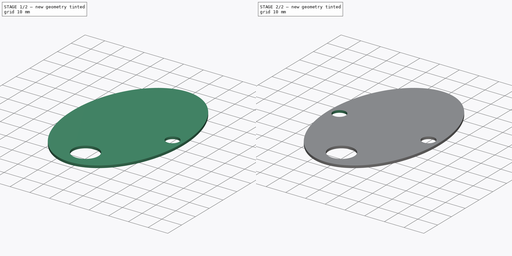
[diagram: build sequence overview — one tinted view per stage of 2, left to right]
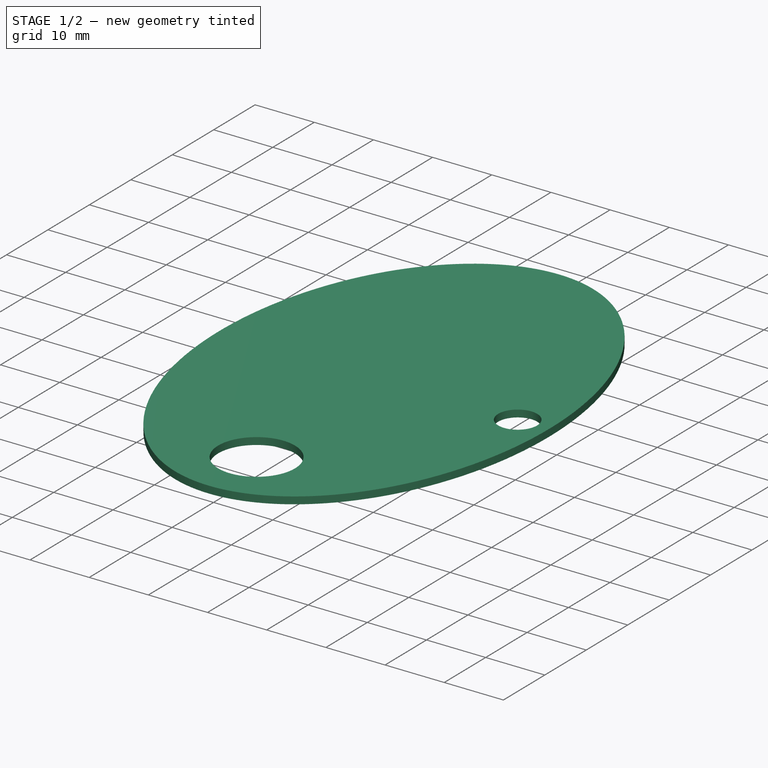
[diagram: stage 1 of 2 — iso view after this stage's code; geometry added in this stage tinted green]
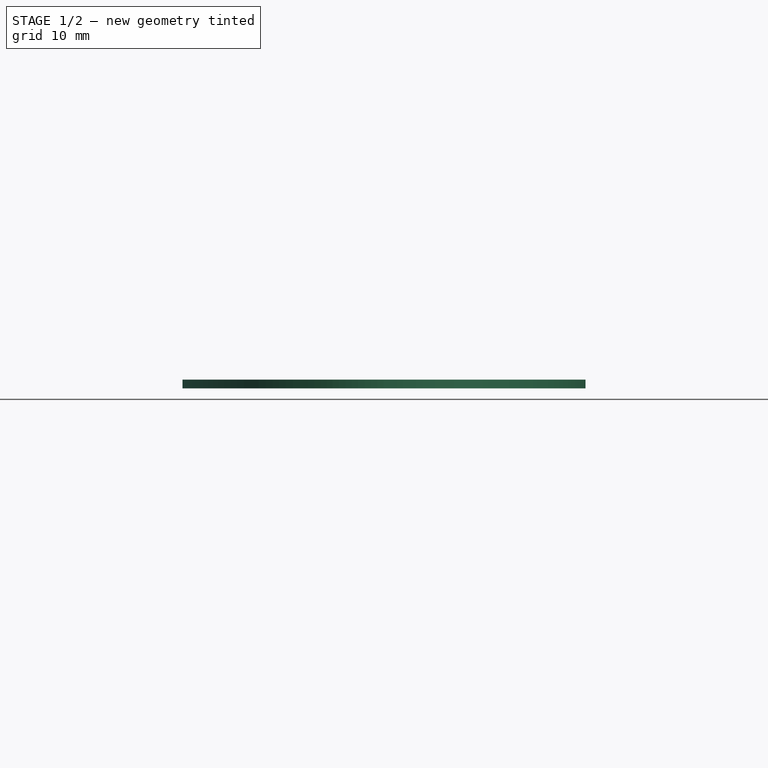
[diagram: stage 1 of 2 — front view after this stage's code; geometry added in this stage tinted green]
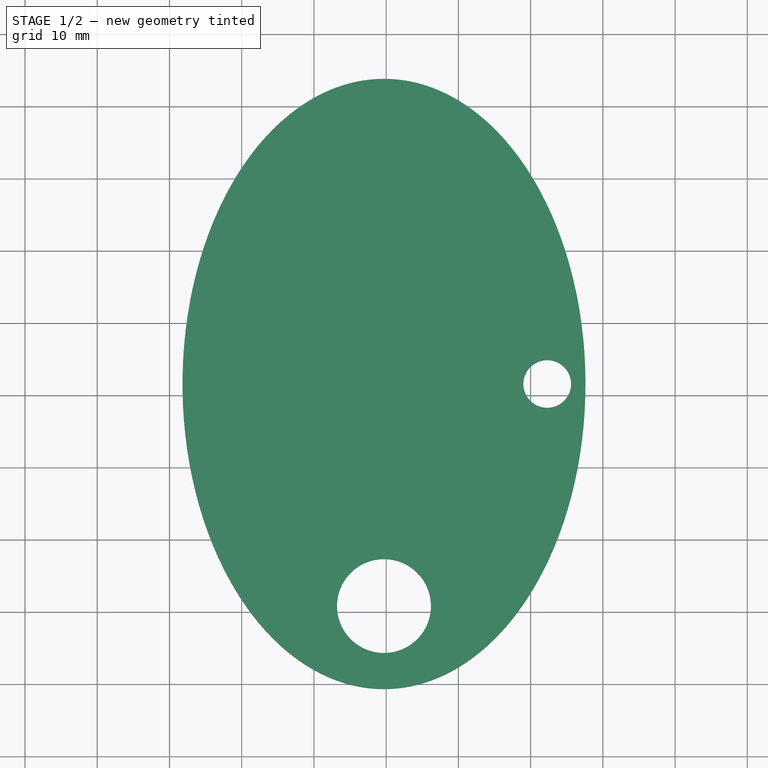
[diagram: stage 1 of 2 — top view after this stage's code; geometry added in this stage tinted green]
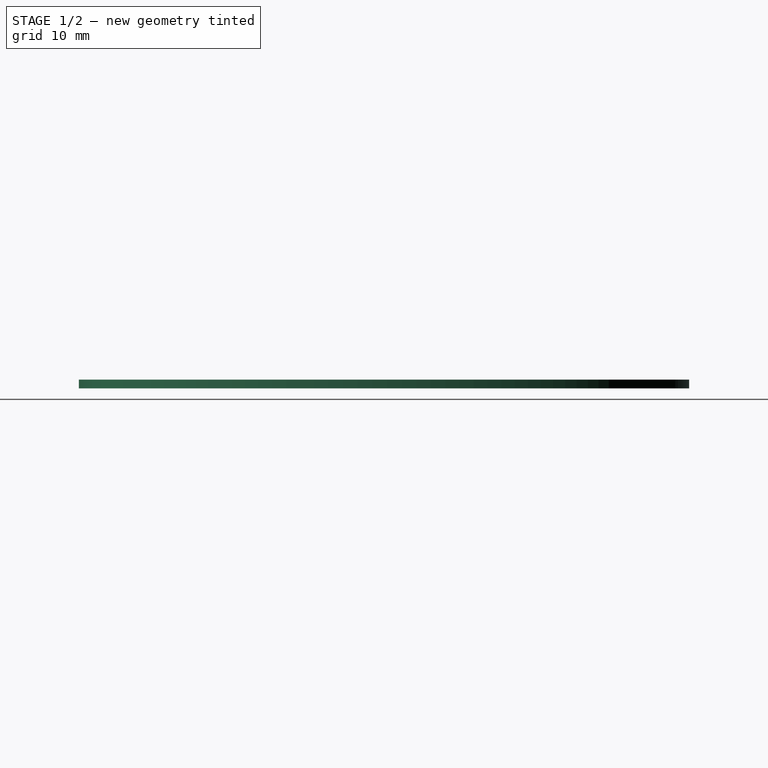
[diagram: stage 1 of 2 — right view after this stage's code; geometry added in this stage tinted green]
FCSTD DOCUMENT  (FreeCAD 0.17R13519 (Git))
Label: 射灯后壳
License: All rights reserved
LicenseURL: http://en.wikipedia.org/wiki/All_rights_reserved
objects: Part::Part2DObjectPython×1, PartDesign::Pad×1, Sketcher::SketchObject×1, PartDesign::Pocket×1, PartDesign::Mirrored×1, PartDesign::Body×1, Part::Feature×1
note: 9 computed .brp shape members not serialized (recipe doc carries the construction recipe); baked Part::Feature solids carry a one-line shape summary decoded from their .brp

FEATURE [Part::Part2DObjectPython] Ellipse  # Draft 2D object (typed FeaturePython)
  FirstAngle = 0
  LastAngle = 0
  MajorRadius = 42.25
  MakeFace = true
  MinorRadius = 27.9
  Placement = pos=(-0.302307,1.58421,0) rot=(0,0,1;1.5708rad)
FEATURE [PartDesign::Pad] Pad
  Length = 1.2
  Length2 = 100
  Placement = pos=(-0.302307,1.58421,0) rot=(0,0,1;1.5708rad)
  Profile = -> Ellipse
  Type = 0
FEATURE [Sketcher::SketchObject] Sketch
  ExternalGeometry = -> [Pad]
  MapMode = 5
  Placement = pos=(-0.302307,1.58421,0) rot=(0.707107,0.707107,0;3.14159rad)
  Support = -> [Pad]
  sketch-geometry (6):
    g0: GeomPoint X=0 Y=27.9 Z=0
    g1: GeomPoint X=-42.25 Y=0 Z=0
    g2: GeomPoint X=0 Y=-27.9 Z=0
    g3: GeomPoint X=42.25 Y=0 Z=0
    g4: Circle CenterX=-30.75 CenterY=0 CenterZ=0 NormalX=0 NormalY=0 NormalZ=1 AngleXU=0 Radius=6.5
    g5: Circle CenterX=0 CenterY=22.6 CenterZ=0 NormalX=0 NormalY=0 NormalZ=1 AngleXU=0 Radius=3.3
  constraints (14):
    c: PointOnObject(g0,g-3)
    c: PointOnObject(g0,g-2)
    c: PointOnObject(g1,g-3)
    c: PointOnObject(g1,g-1)
    c: PointOnObject(g2,g-3)
    c: PointOnObject(g2,g-2)
    c: PointOnObject(g3,g-3)
    c: PointOnObject(g3,g-1)
    c: Radius(g4) = 6.5
    c: PointOnObject(g4,g-1)
    c: DistanceX(g1,g4) = 11.5
    c: Radius(g5) = 3.3
    c: PointOnObject(g5,g-2)
    c: DistanceY(g5,g0) = 5.3
FEATURE [PartDesign::Pocket] Pocket
  BaseFeature = -> Pad
  Length = 1.2
  Length2 = 100
  Placement = pos=(-0.302307,1.58421,0) rot=(0,0,1;1.5708rad)
  Profile = -> Sketch
  Type = 0
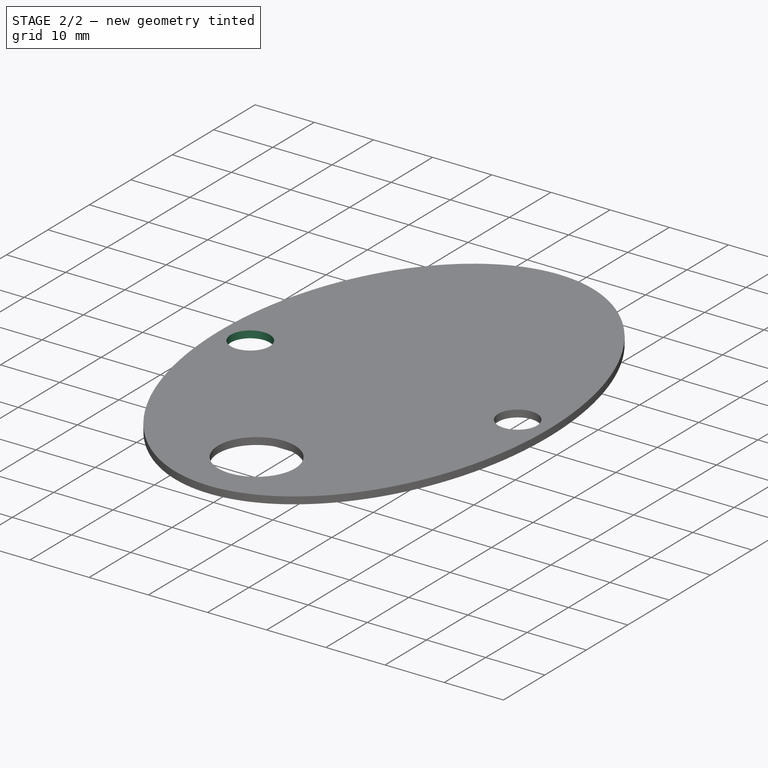
[diagram: stage 2 of 2 — iso view after this stage's code; geometry added in this stage tinted green]
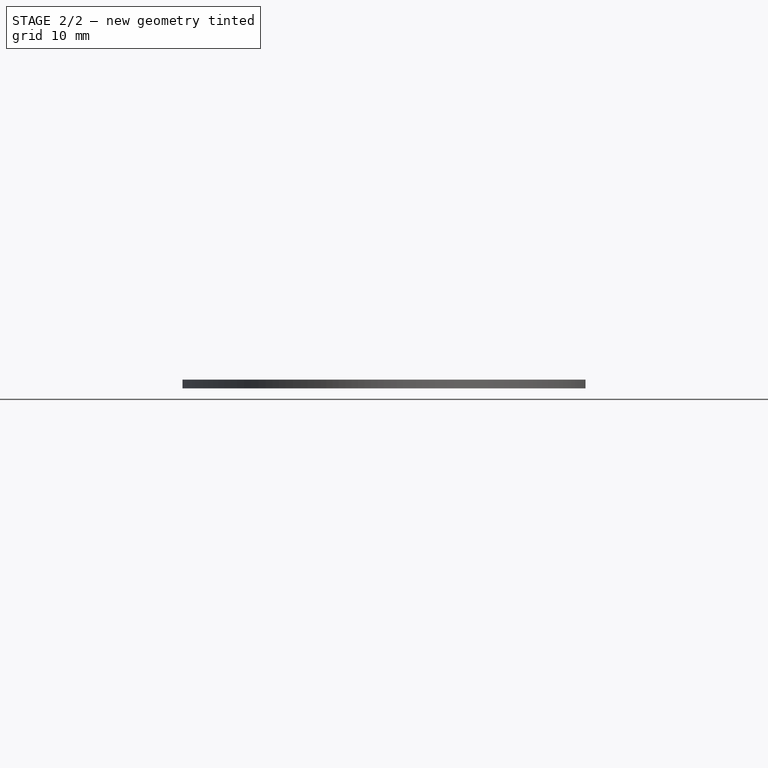
[diagram: stage 2 of 2 — front view after this stage's code; geometry added in this stage tinted green]
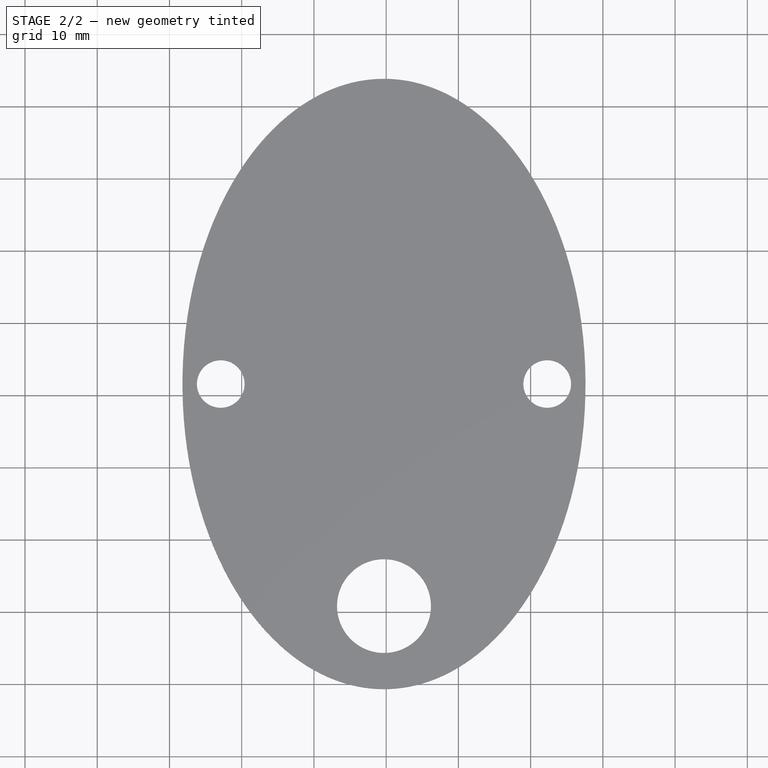
[diagram: stage 2 of 2 — top view after this stage's code; geometry added in this stage tinted green]
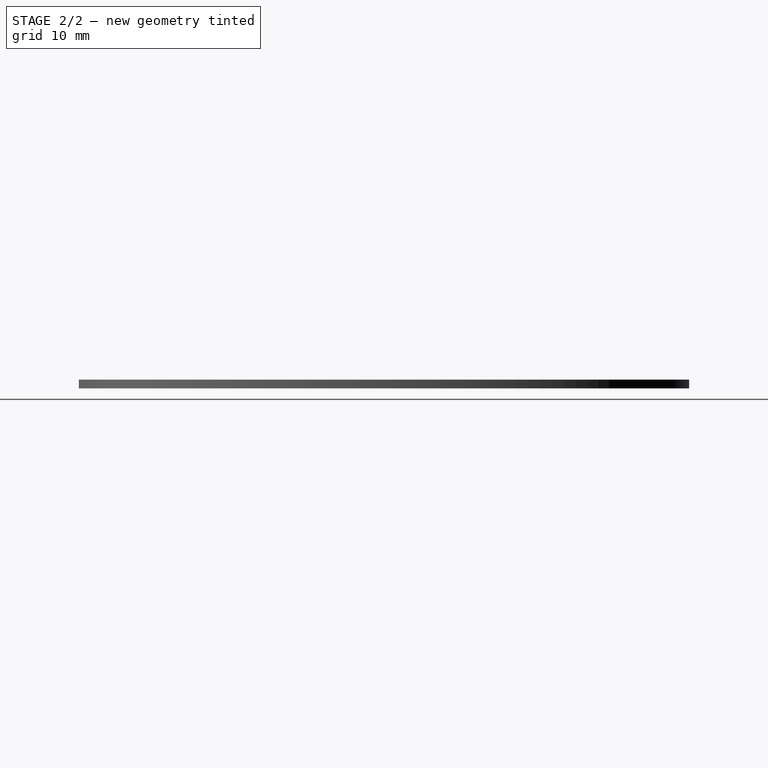
[diagram: stage 2 of 2 — right view after this stage's code; geometry added in this stage tinted green]
FEATURE [PartDesign::Mirrored] Mirrored
  BaseFeature = -> Pocket
  MirrorPlane = -> Sketch [H_Axis]
  Originals = -> [Pocket]
  Placement = pos=(-0.302307,1.58421,0) rot=(0,0,1;1.5708rad)
FEATURE [PartDesign::Body] Body
  Group = -> [Ellipse,Pad,Sketch,Pocket,Mirrored]
  Origin = -> Origin
  Tip = -> Mirrored
FEATURE [Part::Feature] Mirrored001
  shape: bbox 55.8 x 84.5 x 1.2 mm, 6 faces (baked)
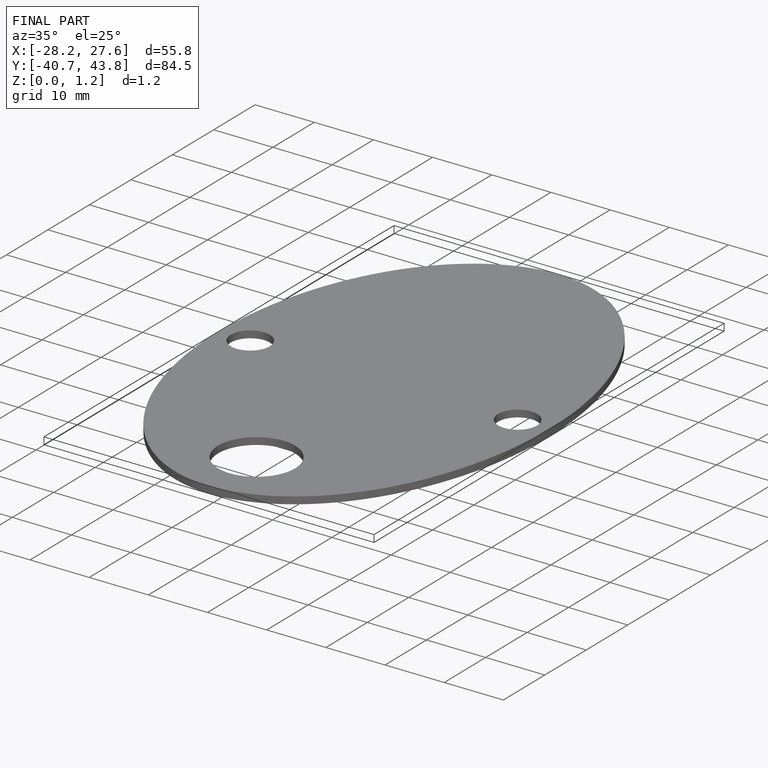
[diagram: finished part — iso view with bounding-box wireframe]
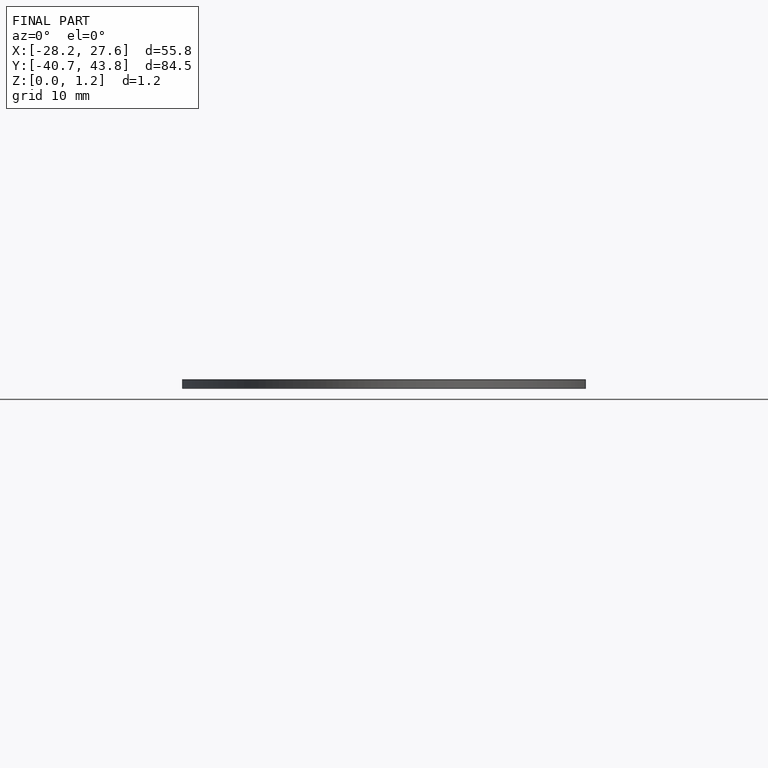
[diagram: finished part — front view with bounding-box wireframe]
